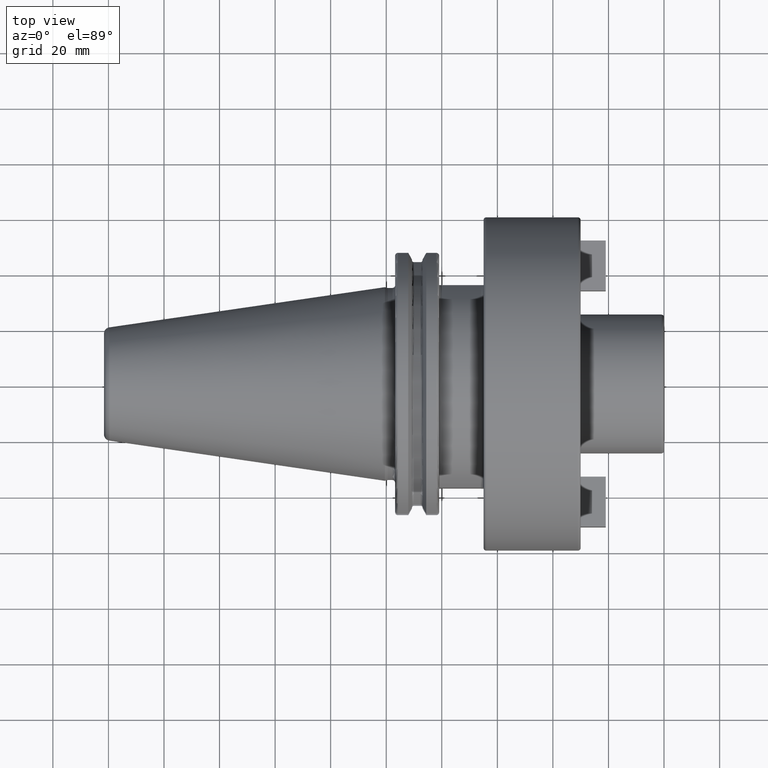
[diagram: clean part render]
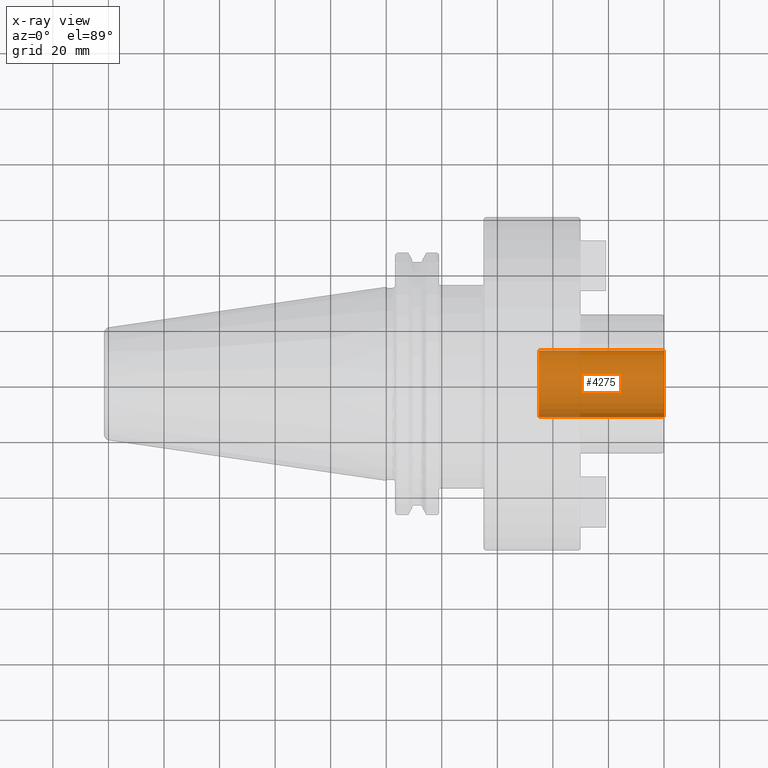
[diagram: x-ray — body ghosted, one internal face saturated and labeled with its STEP entity id]
A machine part, top view, then the same camera in x-ray: the body is ghosted and one INTERNAL B-rep face — a face not visible from any outside direction — is saturated and labeled: STEP entity #4275.
In plain terms, the highlighted cylindrical surface (edge-blend (fillet) strip) has radius 12 mm, axis along (1, 0, 0).
Its self-contained STEP definition (entity closure, byte-faithful):
#4210=CARTESIAN_POINT('',(1.E2,0.E0,0.E0));
#4211=DIRECTION('',(-1.E0,0.E0,0.E0));
#4212=DIRECTION('',(0.E0,1.E0,0.E0));
#4213=AXIS2_PLACEMENT_3D('',#4210,#4211,#4212);
#4220=DIRECTION('',(-1.E0,0.E0,0.E0));
#4221=VECTOR('',#4220,4.5E1);
#4222=CARTESIAN_POINT('',(1.E2,1.2E1,0.E0));
#4223=LINE('',#4222,#4221);
#4224=DIRECTION('',(-1.E0,0.E0,0.E0));
#4225=VECTOR('',#4224,4.5E1);
#4226=CARTESIAN_POINT('',(1.E2,-1.2E1,0.E0));
#4227=LINE('',#4226,#4225);
#4228=CARTESIAN_POINT('',(5.5E1,0.E0,0.E0));
#4229=DIRECTION('',(1.E0,0.E0,0.E0));
#4230=DIRECTION('',(0.E0,-1.E0,0.E0));
#4231=AXIS2_PLACEMENT_3D('',#4228,#4229,#4230);
#4248=CARTESIAN_POINT('',(5.5E1,-1.2E1,0.E0));
#4249=CARTESIAN_POINT('',(5.5E1,1.2E1,0.E0));
#4250=VERTEX_POINT('',#4248);
#4251=VERTEX_POINT('',#4249);
#4252=CARTESIAN_POINT('',(1.E2,-1.2E1,0.E0));
#4253=CARTESIAN_POINT('',(1.E2,1.2E1,0.E0));
#4254=VERTEX_POINT('',#4252);
#4255=VERTEX_POINT('',#4253);
#4260=CARTESIAN_POINT('',(3.562551167522E1,0.E0,0.E0));
#4261=DIRECTION('',(1.E0,0.E0,0.E0));
#4262=DIRECTION('',(0.E0,-1.E0,0.E0));
#4263=AXIS2_PLACEMENT_3D('',#4260,#4261,#4262);
#4264=CYLINDRICAL_SURFACE('',#4263,1.2E1);
#4266=ORIENTED_EDGE('',*,*,#4265,.T.);
#4268=ORIENTED_EDGE('',*,*,#4267,.T.);
#4270=ORIENTED_EDGE('',*,*,#4269,.T.);
#4272=ORIENTED_EDGE('',*,*,#4271,.F.);
#4273=EDGE_LOOP('',(#4266,#4268,#4270,#4272));
#4274=FACE_OUTER_BOUND('',#4273,.F.);
#4275=ADVANCED_FACE('',(#4274),#4264,.F.);
#4214=CIRCLE('',#4213,1.2E1);
#4232=CIRCLE('',#4231,1.2E1);
#4265=EDGE_CURVE('',#4255,#4254,#4214,.T.);
#4267=EDGE_CURVE('',#4254,#4250,#4227,.T.);
#4269=EDGE_CURVE('',#4250,#4251,#4232,.T.);
#4271=EDGE_CURVE('',#4255,#4251,#4223,.T.);